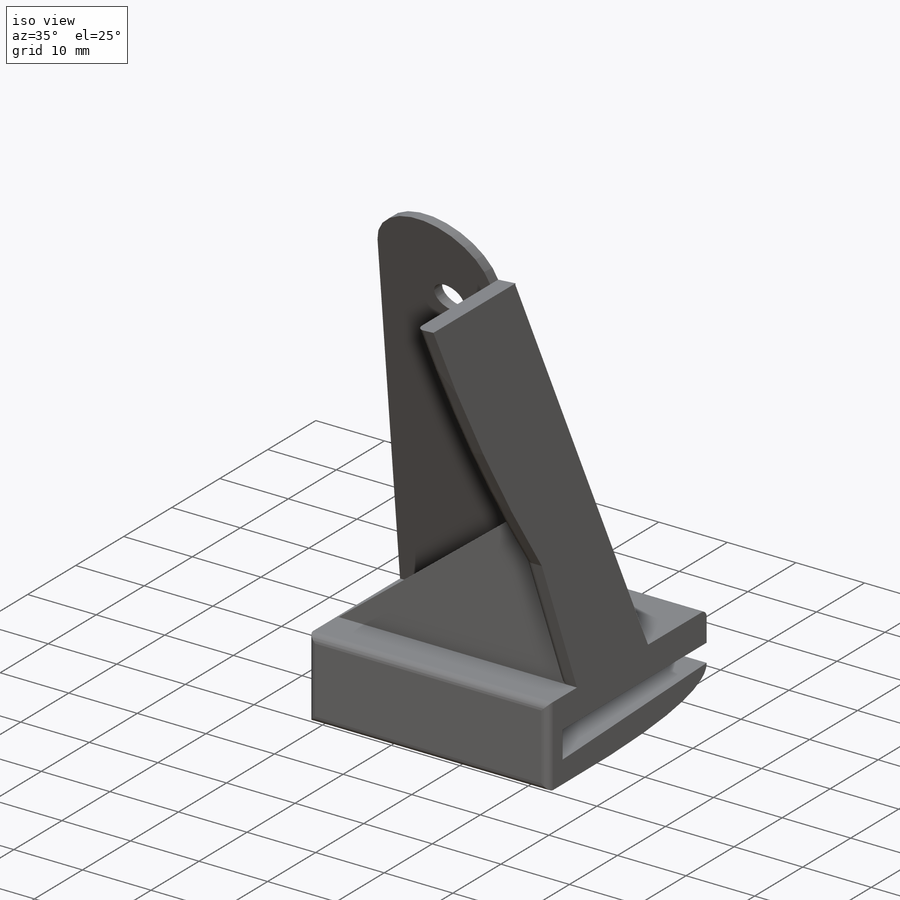
[diagram: iso view]
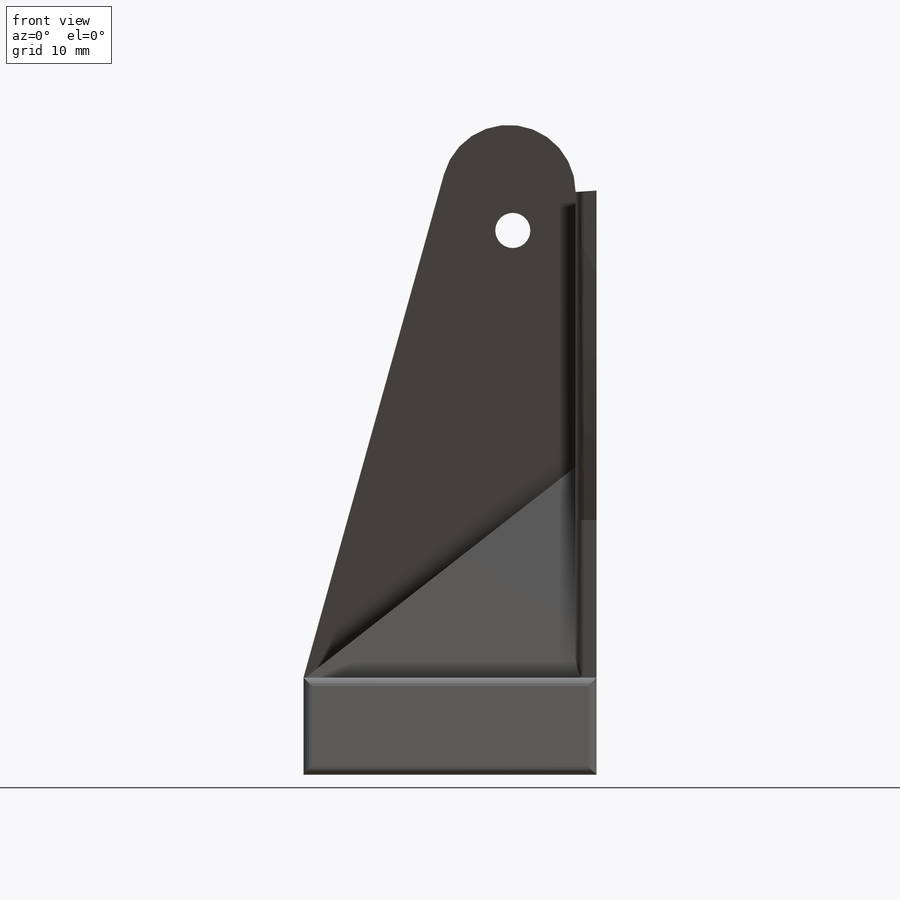
[diagram: front view]
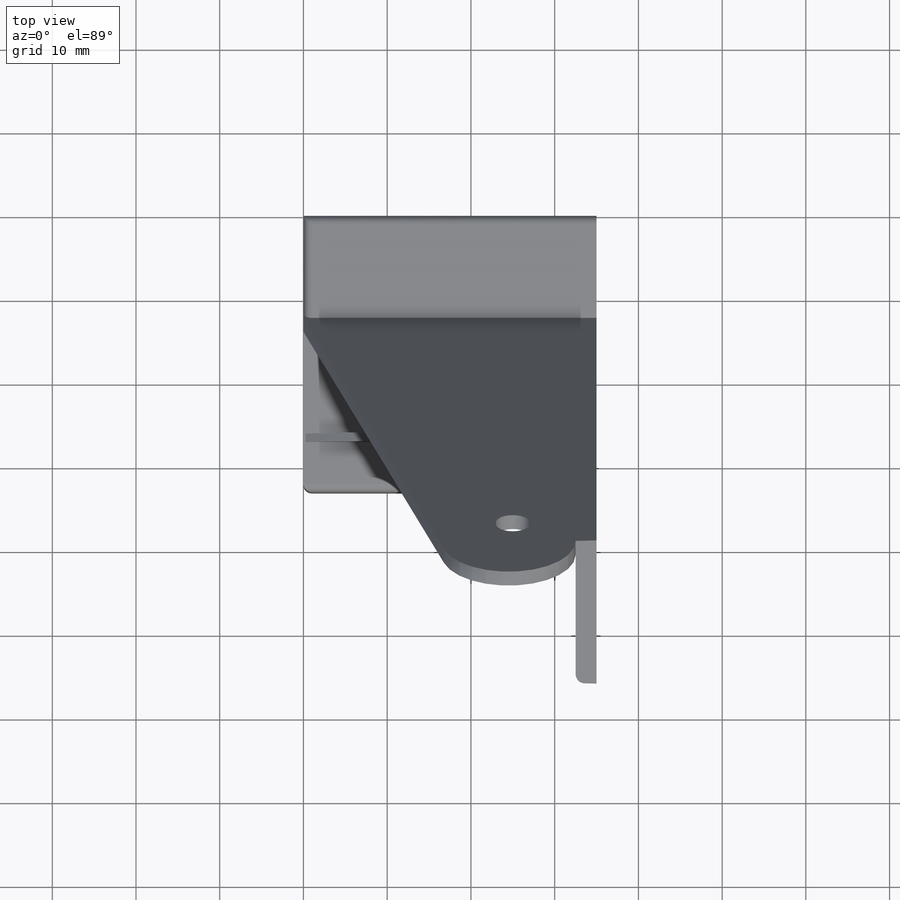
[diagram: top view]
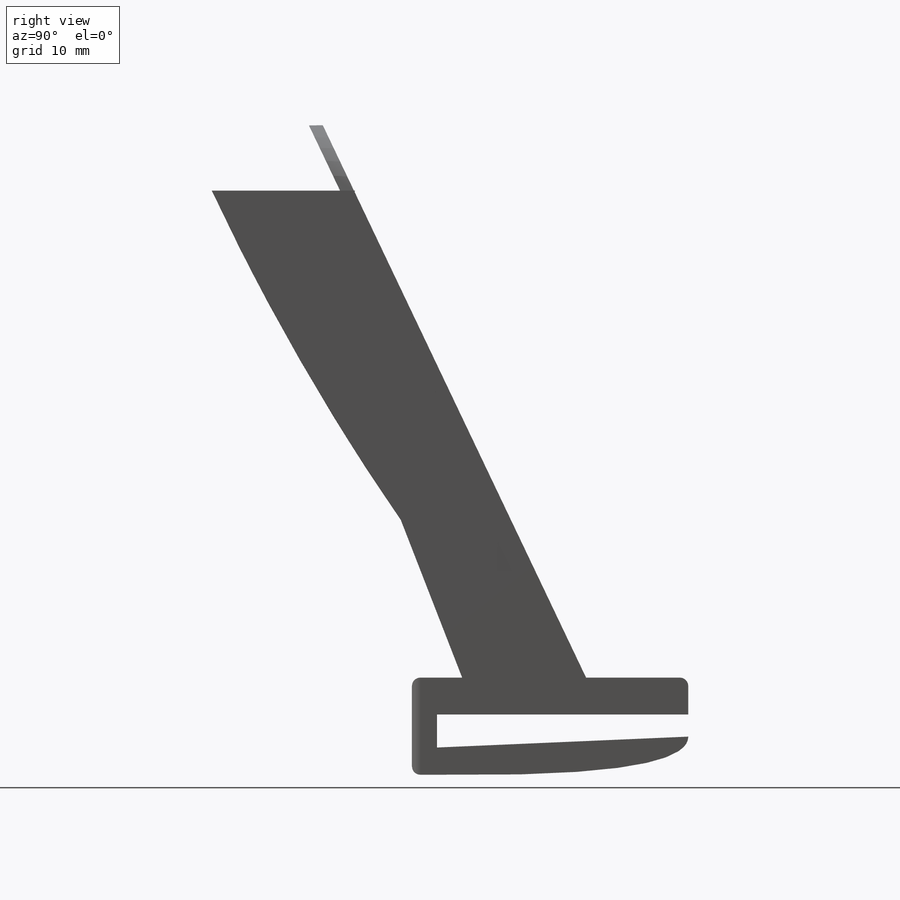
[diagram: right view]
SOLIDWORKS PART (.sldprt)
format: sldprt  version: not decoded by parser v0  size: 479,744 bytes
history: native  units: mm
features: sketch x21, cut_extrude x12, extrude x5, fillet x5, material x1, plane x1 (+11 scaffold rows collapsed)
feature tree (56):
  scaffold x11  (default folders/planes/origin — collapsed)
  material  "Material <not specified>"
  sketch  "Sketch2"  dims[D1=35.0mm]
  extrude  "Boss-Extrude1"  Depth=3mm
  sketch  "Sketch3"  dims[c1.D1=3.2mm c1.D2=4.4mm c1.D3=45.0mm c1.D4=90.0deg c2.D1=3.95mm c2.D4=2.0mm]
  extrude  "Boss-Extrude2"  Depth=35mm
  sketch  "Sketch5"  dims[c1.D3=~188.237201mm c1.D1=116.0mm c1.D2=2.5mm c2.D1=117.0mm c2.D3=0.0mm]
  extrude  "Boss-Extrude3"  Depth=150mm
  sketch  "Sketch7"
  cut_extrude  "Cut-Extrude1"  Depth=70mm
  sketch  "Sketch13"  dims[D1=3.5mm]
  cut_extrude  "Cut-Extrude3"  Depth=6mm
  sketch  "Sketch16"  dims[D1=60.0mm]
  sketch  "Sketch18"
  sketch  "Sketch19"  dims[D1=1.5mm]
  extrude  "Boss-Extrude5"  Depth=70mm
  sketch  "Sketch21"
  cut_extrude  "Cut-Extrude5"  Depth=150mm
  sketch  "Sketch22"
  extrude  "Boss-Extrude6"  Depth=1mm
  sketch  "Sketch23"
  cut_extrude  "Cut-Extrude6"  Depth=10mm
  sketch  "Sketch24"  dims[D1=3.5mm]
  sketch  "Sketch17"  dims[D1=2.5mm D2=3.0mm D3=1.0mm D4=22.96mm]
  sketch  "Sketch28"
  cut_extrude  "Cut-Extrude7"  Depth=10mm
  sketch  "Sketch29"
  cut_extrude  "Cut-Extrude8"  Depth=10mm
  cut_extrude  "Cut-Extrude9"  [1 undecoded]
  sketch  "Sketch29<2>"  dims[D1=100.0mm]
  plane  "Plane1"  Offset=100mm
  sketch  "Sketch30"  dims[D1=25.0mm D2=65.0mm]
  cut_extrude  "Cut-Extrude10"  Depth=100mm
  sketch  "Sketch31"
  cut_extrude  "Cut-Extrude11"  Depth=6.5mm
  sketch  "Sketch32"  dims[D1=8.0mm]
  cut_extrude  "Cut-Extrude12"  Depth=100mm
  fillet  "Fillet4"  Radius=1mm
  fillet  "Fillet5"  Radius=1mm
  fillet  "Fillet7"  Radius=1mm
  fillet  "Fillet8"  Radius=1mm
  sketch  "Sketch33"
  cut_extrude  "Cut-Extrude13"  [1 undecoded]
  sketch  "Sketch34"  dims[D1=15.0mm]
  cut_extrude  "Cut-Extrude14"  Depth=100mm
  fillet  "Fillet9"  Radius=1mm
decode coverage: 32 of 43 modeling features carry decoded parameters
note: ~ marks probable driven/reference dimensions
note: 2 parameter values undecoded
note: suppression state not decoded; provenance and decode notes live in map.json
